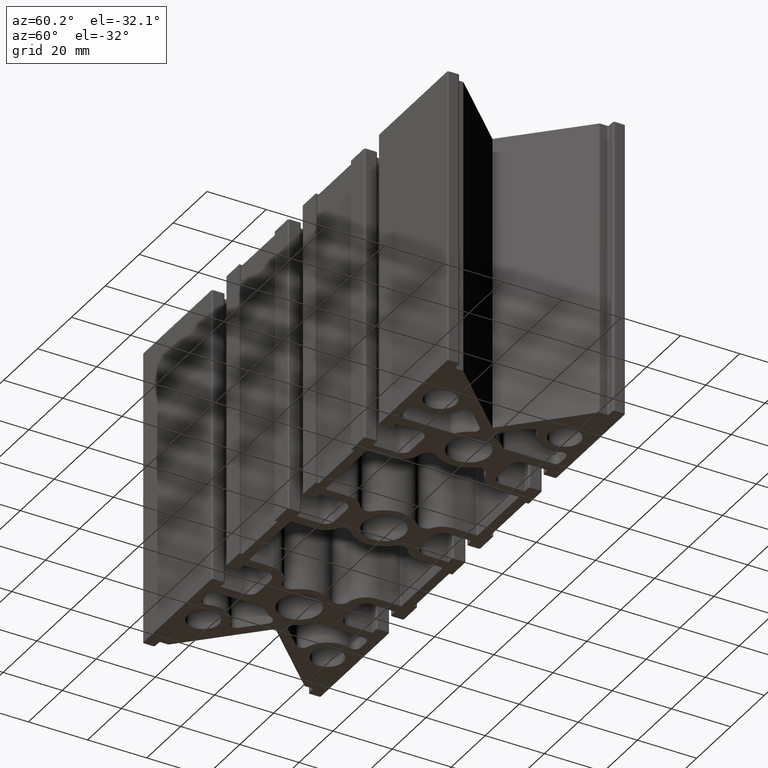
[diagram: clean part render]
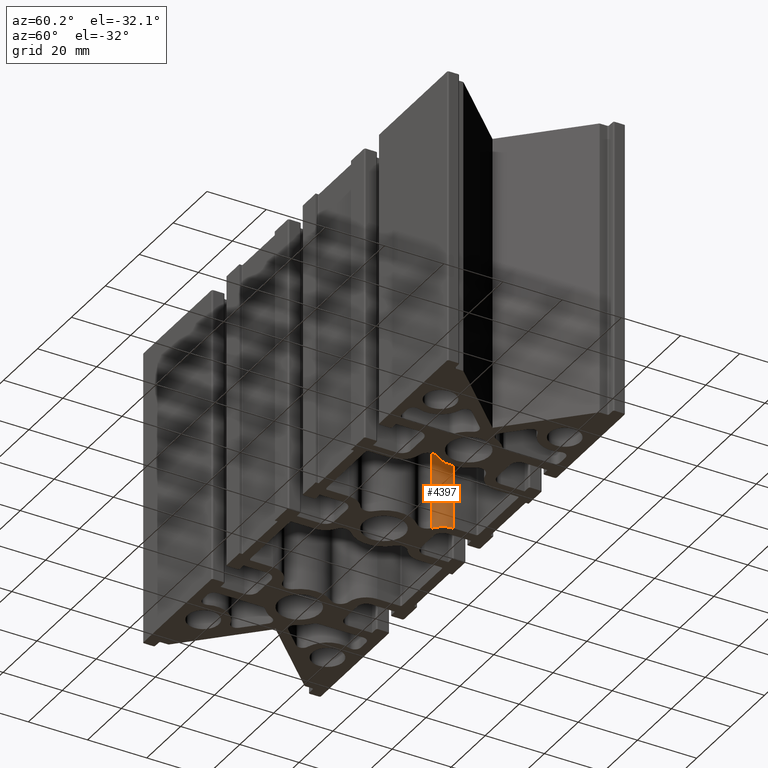
[diagram: same view with one face highlighted and labeled with its STEP entity id]
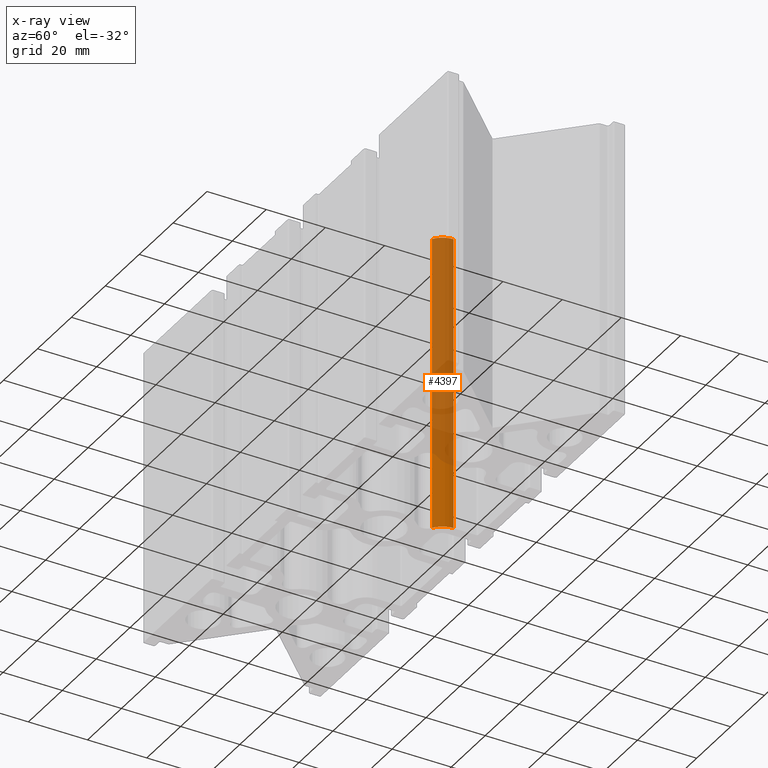
[diagram: x-ray of the same camera — body ghosted, the highlighted face saturated]
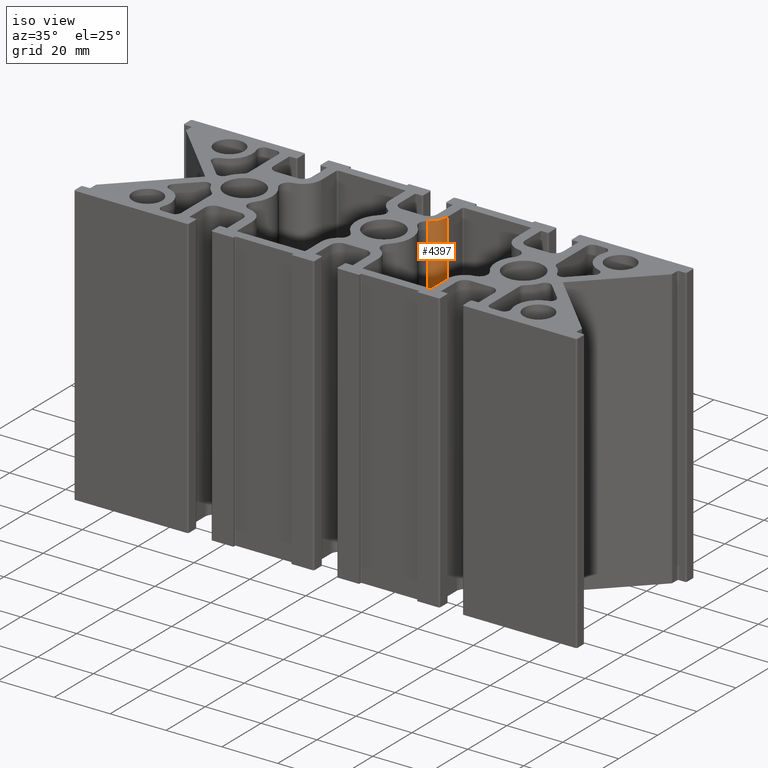
[diagram: same view with one face highlighted and labeled with its STEP entity id]
A machine part, auxiliary view. The second image highlights one B-rep face of the part: STEP entity #4397.
The next image is the same camera in x-ray: the body ghosted, the highlighted face saturated — about 77% of this face is hidden behind the body in this view.
A second angle (iso view) of the same face is appended — the face is thin or edge-on in the first view.
In plain terms, the highlighted cylindrical surface (edge-blend (fillet) strip) has radius 6.5 mm, axis along (0, 0, -1).
Its self-contained STEP definition (entity closure, byte-faithful):
#167=FACE_OUTER_BOUND('',#398,.T.);
#398=EDGE_LOOP('',(#2947,#2948,#2949,#2950));
#667=LINE('',#6552,#1101);
#669=LINE('',#6560,#1103);
#1101=VECTOR('',#5166,100.);
#1103=VECTOR('',#5174,100.);
#1535=CIRCLE('',#4647,6.5);
#1536=CIRCLE('',#4648,6.5);
#1785=VERTEX_POINT('',#6548);
#1787=VERTEX_POINT('',#6551);
#1789=VERTEX_POINT('',#6557);
#1790=VERTEX_POINT('',#6559);
#2254=EDGE_CURVE('',#1787,#1785,#667,.T.);
#2257=EDGE_CURVE('',#1789,#1785,#1535,.T.);
#2258=EDGE_CURVE('',#1790,#1789,#669,.T.);
#2259=EDGE_CURVE('',#1787,#1790,#1536,.T.);
#2947=ORIENTED_EDGE('',*,*,#2257,.F.);
#2948=ORIENTED_EDGE('',*,*,#2258,.F.);
#2949=ORIENTED_EDGE('',*,*,#2259,.F.);
#2950=ORIENTED_EDGE('',*,*,#2254,.T.);
#4271=CYLINDRICAL_SURFACE('',#4646,6.5);
#4397=ADVANCED_FACE('',(#167),#4271,.T.);
#4646=AXIS2_PLACEMENT_3D('',#6556,#5170,#5171);
#4647=AXIS2_PLACEMENT_3D('',#6558,#5172,#5173);
#4648=AXIS2_PLACEMENT_3D('',#6561,#5175,#5176);
#5166=DIRECTION('',(0.,0.,-1.));
#5170=DIRECTION('center_axis',(0.,0.,-1.));
#5171=DIRECTION('ref_axis',(0.532617404941604,-0.846356130688064,0.));
#5172=DIRECTION('center_axis',(0.,0.,-1.));
#5173=DIRECTION('ref_axis',(0.532617404941604,-0.846356130688064,0.));
#5174=DIRECTION('',(0.,0.,-1.));
#5175=DIRECTION('center_axis',(0.,0.,1.));
#5176=DIRECTION('ref_axis',(0.532617404941604,-0.846356130688064,0.));
#6548=CARTESIAN_POINT('',(7.21201313212043,12.0986851505276,0.));
#6551=CARTESIAN_POINT('',(7.21201313212043,12.0986851505276,100.));
#6552=CARTESIAN_POINT('',(7.21201313212043,12.0986851505276,100.));
#6556=CARTESIAN_POINT('Origin',(3.75,17.6,100.));
#6557=CARTESIAN_POINT('',(10.25,17.6,0.));
#6558=CARTESIAN_POINT('Origin',(3.75,17.6,0.));
#6559=CARTESIAN_POINT('',(10.25,17.6,100.));
#6560=CARTESIAN_POINT('',(10.25,17.6,100.));
#6561=CARTESIAN_POINT('Origin',(3.75,17.6,100.));